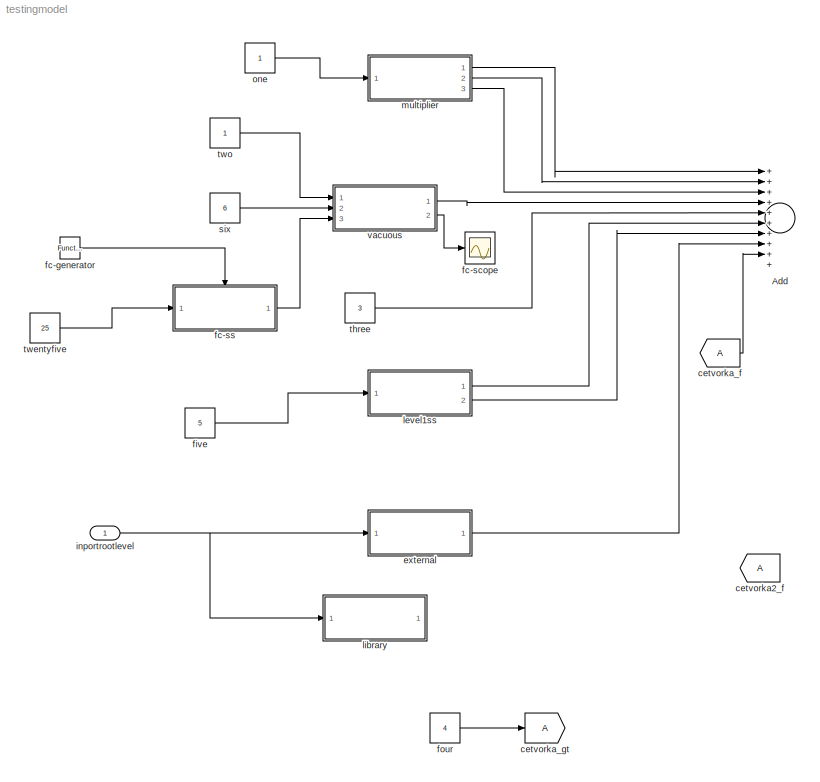
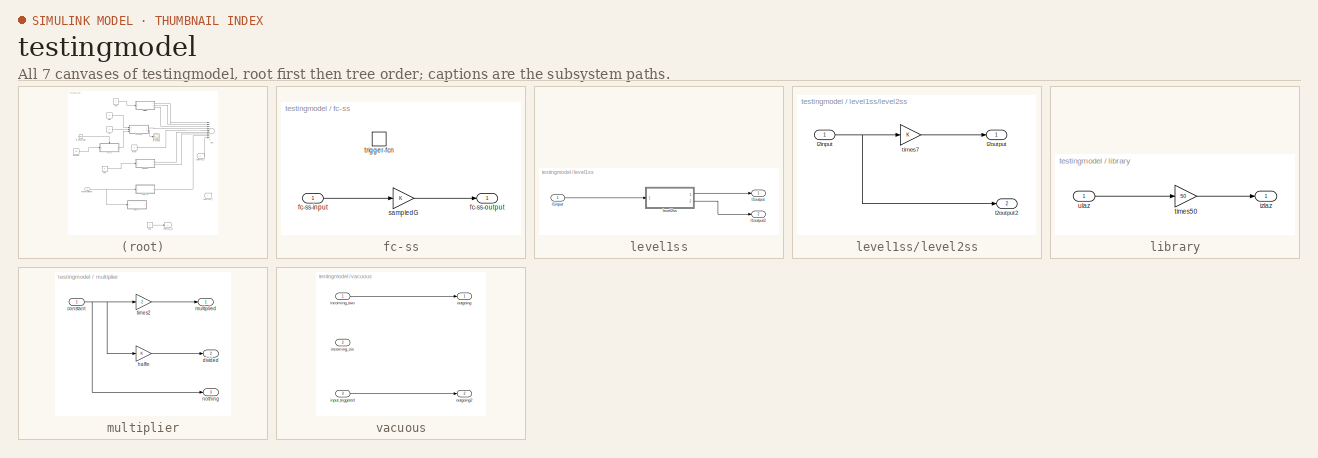
[diagram: thumbnail index - all 7 canvases of the model, root first then tree order]
MODEL testingmodel
KIND model
BLOCK [Sum] Add
  InputSameDT = off
  Inputs = ++++++++++
  OutDataTypeStr = Inherit: Inherit via internal rule
  Ports = [10, 1]
  SID = 1
  SaturateOnIntegerOverflow = off
BLOCK [From] cetvorka2_f
  SID = 68
BLOCK [From] cetvorka_f
  SID = 67
BLOCK [Goto] cetvorka_gt
  SID = 65
BLOCK [ModelReference] external
  ModelNameDialog = lib_external.mdl
  ModelReferenceVersion = 1.11
  Ports = [1, 1]
  SID = 50
  Variant = off
BLOCK [Reference] fc-generator  REF=simulink/Ports &\nSubsystems/Function-Call\nGenerator
  Ports = [0, 1]
  SID = 83
  SourceBlock = simulink/Ports &\nSubsystems/Function-Call\nGenerator
  SourceType = Function-Call Generator
  numberOfIterations = 1
  sample_time = 10
BLOCK [Scope] fc-scope
  Ports = [1]
  SID = 86
  ScopeSpecificationString = C++SS(StrPVP('SaveName','ScopeData'))
BLOCK [SubSystem] fc-ss
  Ports = [1, 1, 0, 1]
  RequestExecContextInheritance = off
  SID = 77
  TreatAsAtomicUnit = on
  Variant = off
BLOCK [Inport] fc-ss/fc-ss-input
  IconDisplay = Port number
  SID = 78
BLOCK [Outport] fc-ss/fc-ss-output
  IconDisplay = Port number
  SID = 80
BLOCK [Gain] fc-ss/sampledG
  OutDataTypeStr = Inherit: Inherit via internal rule
  ParamDataTypeStr = Inherit: Inherit via internal rule
  SID = 84
  SaturateOnIntegerOverflow = off
BLOCK [TriggerPort] fc-ss/trigger-fcn
  Ports = []
  SID = 79
  StatesWhenEnabling = held
  TriggerType = function-call
  VariantControl = Variant
BLOCK [Constant] five
  SID = 35
  Value = 5
BLOCK [Constant] four
  SID = 64
  Value = 4
BLOCK [Inport] inportrootlevel
  IconDisplay = Port number
  SID = 42
BLOCK [SubSystem] level1ss
  Ports = [1, 2]
  RequestExecContextInheritance = off
  SID = 32
  Variant = off
BLOCK [Inport] level1ss/l1input
  IconDisplay = Port number
  SID = 33
BLOCK [Outport] level1ss/l1output
  IconDisplay = Port number
  SID = 34
BLOCK [Outport] level1ss/l1output2
  IconDisplay = Port number
  Port = 2
  SID = 41
BLOCK [SubSystem] level1ss/level2ss
  Ports = [1, 2]
  RequestExecContextInheritance = off
  SID = 36
  Variant = off
BLOCK [Inport] level1ss/level2ss/l2input
  IconDisplay = Port number
  SID = 37
BLOCK [Outport] level1ss/level2ss/l2output
  IconDisplay = Port number
  SID = 38
BLOCK [Outport] level1ss/level2ss/l2output2
  IconDisplay = Port number
  Port = 2
  SID = 40
BLOCK [Gain] level1ss/level2ss/times7
  OutDataTypeStr = Inherit: Inherit via internal rule
  ParamDataTypeStr = Inherit: Inherit via internal rule
  SID = 39
  SaturateOnIntegerOverflow = off
BLOCK [SubSystem] library
  Ports = [1, 1]
  RequestExecContextInheritance = off
  SID = 54
  TreatAsAtomicUnit = on
  Variant = off
BLOCK [Outport] library/izlaz
  IconDisplay = Port number
  SID = 56
BLOCK [Gain] library/times50
  Gain = 50
  OutDataTypeStr = Inherit: Inherit via internal rule
  ParamDataTypeStr = Inherit: Inherit via internal rule
  SID = 57
  SaturateOnIntegerOverflow = off
BLOCK [Inport] library/ulaz
  IconDisplay = Port number
  SID = 55
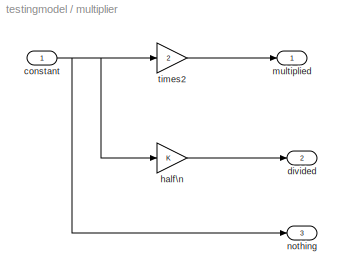
BLOCK [SubSystem] multiplier
  Ports = [1, 3]
  RequestExecContextInheritance = off
  SID = 3
  Variant = off
BLOCK [Inport] multiplier/constant
  IconDisplay = Port number
  SID = 4
BLOCK [Outport] multiplier/divided
  IconDisplay = Port number
  Port = 2
  SID = 12
BLOCK [Gain] multiplier/half\n
  OutDataTypeStr = Inherit: Inherit via internal rule
  ParamDataTypeStr = Inherit: Inherit via internal rule
  SID = 13
  SaturateOnIntegerOverflow = off
BLOCK [Outport] multiplier/multiplied
  IconDisplay = Port number
  SID = 5
BLOCK [Outport] multiplier/nothing
  IconDisplay = Port number
  Port = 3
  SID = 14
BLOCK [Gain] multiplier/times2
  Gain = 2
  OutDataTypeStr = Inherit: Inherit via internal rule
  ParamDataTypeStr = Inherit: Inherit via internal rule
  SID = 6
  SaturateOnIntegerOverflow = off
BLOCK [Constant] one
  SID = 2
BLOCK [Constant] six
  SID = 62
  Value = 6
BLOCK [Constant] three
  SID = 11
  Value = 3
BLOCK [Constant] twentyfive
  SID = 85
  Value = 25
BLOCK [Constant] two
  SID = 10
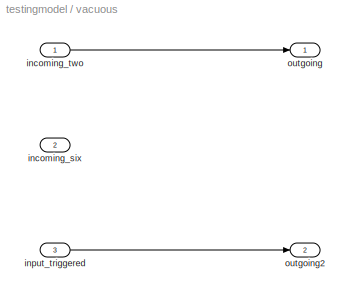
BLOCK [SubSystem] vacuous
  Ports = [3, 2]
  RequestExecContextInheritance = off
  SID = 7
  Variant = off
BLOCK [Inport] vacuous/incoming_six
  IconDisplay = Port number
  Port = 2
  SID = 63
BLOCK [Inport] vacuous/incoming_two
  IconDisplay = Port number
  SID = 8
BLOCK [Inport] vacuous/input_triggered
  IconDisplay = Port number
  Port = 3
  SID = 73
BLOCK [Outport] vacuous/outgoing
  IconDisplay = Port number
  SID = 9
BLOCK [Outport] vacuous/outgoing2
  IconDisplay = Port number
  Port = 2
  SID = 74
LINE cetvorka_f:1 -> Add:9
LINE external:1 -> Add:8
LINE fc-generator:1 -> fc-ss:trigger
LINE fc-ss/fc-ss-input:1 -> fc-ss/sampledG:1
LINE fc-ss/sampledG:1 -> fc-ss/fc-ss-output:1
LINE fc-ss:1 -> vacuous:3
LINE five:1 -> level1ss:1
LINE four:1 -> cetvorka_gt:1
NET inportrootlevel:1 -> external:1, library:1
LINE level1ss/l1input:1 -> level1ss/level2ss:1
NET level1ss/level2ss/l2input:1 -> level1ss/level2ss/l2output2:1, level1ss/level2ss/times7:1
LINE level1ss/level2ss/times7:1 -> level1ss/level2ss/l2output:1
LINE level1ss/level2ss:1 -> level1ss/l1output:1
LINE level1ss/level2ss:2 -> level1ss/l1output2:1
LINE level1ss:1 -> Add:6
LINE level1ss:2 -> Add:7
LINE library/times50:1 -> library/izlaz:1
LINE library/ulaz:1 -> library/times50:1
NET multiplier/constant:1 -> multiplier/half\n:1, multiplier/nothing:1, multiplier/times2:1
LINE multiplier/half\n:1 -> multiplier/divided:1
LINE multiplier/times2:1 -> multiplier/multiplied:1
LINE multiplier:1 -> Add:1
LINE multiplier:2 -> Add:2
LINE multiplier:3 -> Add:3
LINE one:1 -> multiplier:1
LINE six:1 -> vacuous:2
LINE three:1 -> Add:5
LINE twentyfive:1 -> fc-ss:1
LINE two:1 -> vacuous:1
LINE vacuous/incoming_two:1 -> vacuous/outgoing:1
LINE vacuous/input_triggered:1 -> vacuous/outgoing2:1
LINE vacuous:1 -> Add:4
LINE vacuous:2 -> fc-scope:1
note: NET lines group one-source signal fan-out (src -> all destinations, sorted); 1:1 wires keep LINE
